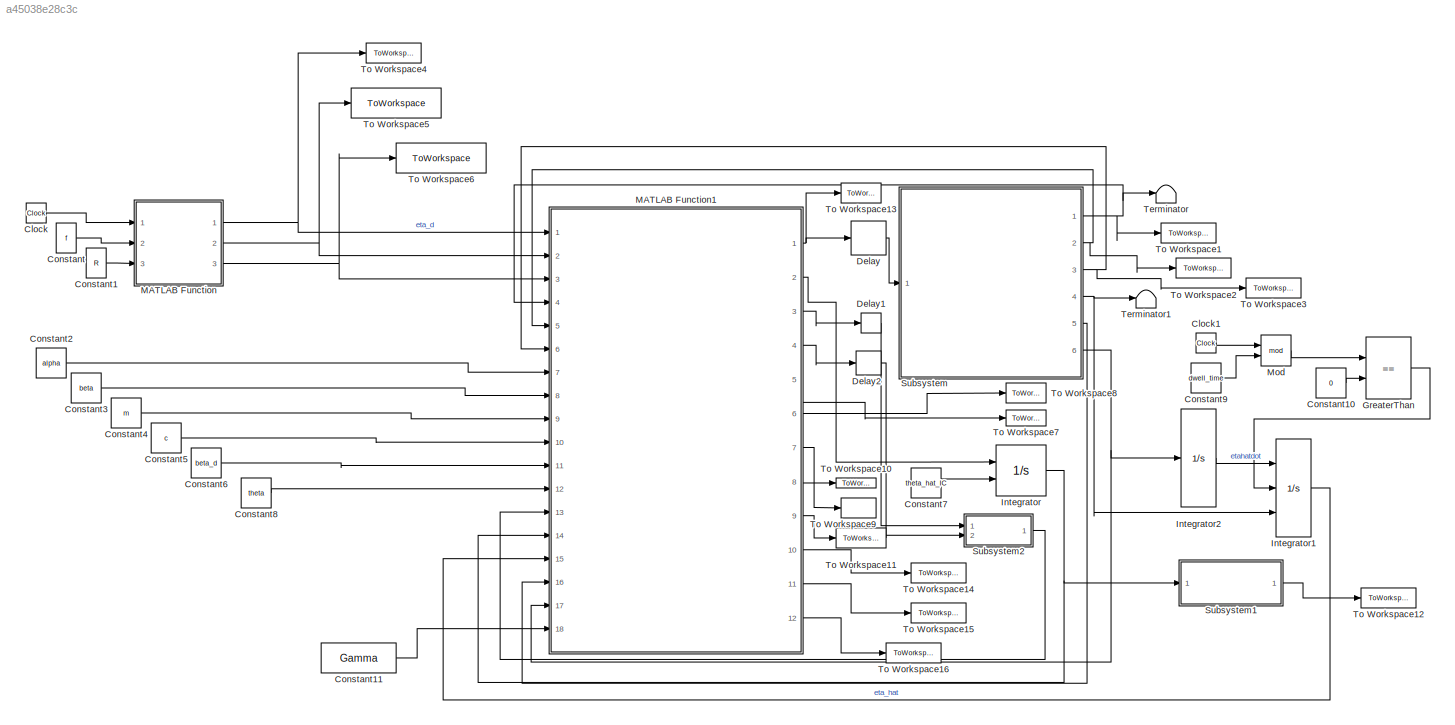
MODEL slx_a45038e28c3c
KIND model
CONFIG AbsTol = auto
CONFIG EnableMultiTasking = off
CONFIG FixedStep = auto
CONFIG MaxStep = auto
CONFIG MinStep = auto
CONFIG RelTol = 1e-3
CONFIG SampleTimeConstraint = Unconstrained
CONFIG SolverName = VariableStepAuto
CONFIG StartTime = 0.0
CONFIG StopTime = tf
BLOCK [Clock] Clock
BLOCK [Clock] Clock1
BLOCK [Constant] Constant
  Value = f
BLOCK [Constant] Constant1
  Value = R
BLOCK [Constant] Constant10
  Value = 0
BLOCK [Constant] Constant11
  Value = Gamma
BLOCK [Constant] Constant2
  Value = alpha
BLOCK [Constant] Constant3
  Value = beta
BLOCK [Constant] Constant4
  Value = m
BLOCK [Constant] Constant5
  Value = c
BLOCK [Constant] Constant6
  Value = beta_d
BLOCK [Constant] Constant7
  Value = theta_hat_IC
BLOCK [Constant] Constant8
  Value = theta
BLOCK [Constant] Constant9
  Value = dwell_time
BLOCK [Delay] Delay
  DelayLength = 1
  InputPortMap = u0
  Ports = [1, 1]
BLOCK [Delay] Delay1
  DelayLength = 1
  InitialCondition = zeros(2,1)
  InputPortMap = u0
  Ports = [1, 1]
BLOCK [Delay] Delay2
  DelayLength = 1
  InitialCondition = zeros(2,1)
  InputPortMap = u0
  Ports = [1, 1]
BLOCK [RelationalOperator] GreaterThan
  InputSameDT = off
  Operator = ==
  OutDataTypeStr = boolean
  Ports = [2, 1]
  RndMeth = Simplest
BLOCK [Integrator] Integrator
  InitialConditionSource = external
  Ports = [2, 1]
BLOCK [Integrator] Integrator1
  ExternalReset = rising
  InitialConditionSource = external
  Ports = [3, 1]
BLOCK [Integrator] Integrator2
  Ports = [1, 1]
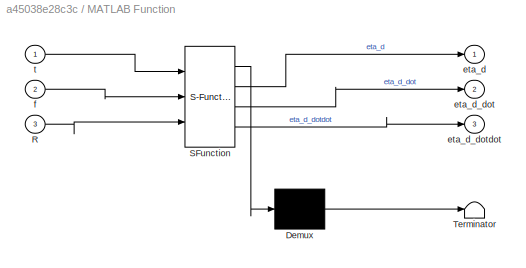
BLOCK [SubSystem] MATLAB Function
  ErrorFcn = Stateflow.Translate.translate
  PermitHierarchicalResolution = ExplicitOnly
  Ports = [3, 3]
  RequestExecContextInheritance = off
  SFBlockType = MATLAB Function
  TreatAsAtomicUnit = on
BLOCK [Demux] MATLAB Function/ Demux 
  Outputs = 1
  Ports = [1, 1]
BLOCK [S-Function] MATLAB Function/ SFunction 
  EnableBusSupport = on
  FunctionName = sf_sfun
  PortCounts = [3 4]
  Ports = [3, 4]
  SFcnIsStateOwnerBlock = off
  SFunctionDeploymentMode = off
  Tag = Stateflow S-Function 2
BLOCK [Terminator] MATLAB Function/ Terminator 
BLOCK [Inport] MATLAB Function/R
  Port = 3
BLOCK [Outport] MATLAB Function/eta_d
BLOCK [Outport] MATLAB Function/eta_d_dot
  Port = 2
BLOCK [Outport] MATLAB Function/eta_d_dotdot
  Port = 3
BLOCK [Inport] MATLAB Function/f
  Port = 2
BLOCK [Inport] MATLAB Function/t
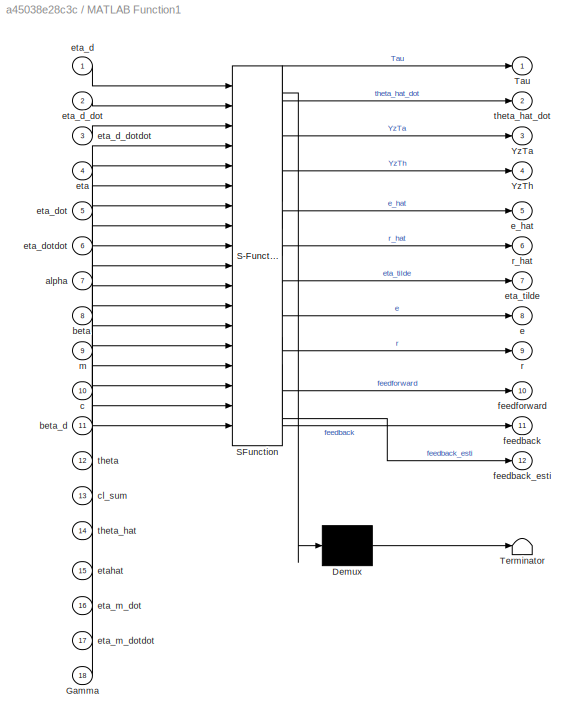
BLOCK [SubSystem] MATLAB Function1
  ErrorFcn = Stateflow.Translate.translate
  PermitHierarchicalResolution = ExplicitOnly
  Ports = [18, 12]
  RequestExecContextInheritance = off
  SFBlockType = MATLAB Function
  TreatAsAtomicUnit = on
BLOCK [Demux] MATLAB Function1/ Demux 
  Outputs = 1
  Ports = [1, 1]
BLOCK [S-Function] MATLAB Function1/ SFunction 
  EnableBusSupport = on
  FunctionName = sf_sfun
  PortCounts = [18 13]
  Ports = [18, 13]
  SFcnIsStateOwnerBlock = off
  SFunctionDeploymentMode = off
  Tag = Stateflow S-Function 1
BLOCK [Terminator] MATLAB Function1/ Terminator 
BLOCK [Inport] MATLAB Function1/Gamma
  Port = 18
BLOCK [Outport] MATLAB Function1/Tau
BLOCK [Outport] MATLAB Function1/YzTa
  Port = 3
BLOCK [Outport] MATLAB Function1/YzTh
  Port = 4
BLOCK [Inport] MATLAB Function1/alpha
  Port = 7
BLOCK [Inport] MATLAB Function1/beta
  Port = 8
BLOCK [Inport] MATLAB Function1/beta_d
  Port = 11
BLOCK [Inport] MATLAB Function1/c
  Port = 10
BLOCK [Inport] MATLAB Function1/cl_sum
  Port = 13
BLOCK [Outport] MATLAB Function1/e
  Port = 8
BLOCK [Outport] MATLAB Function1/e_hat
  Port = 5
BLOCK [Inport] MATLAB Function1/eta
  Port = 4
BLOCK [Inport] MATLAB Function1/eta_d
BLOCK [Inport] MATLAB Function1/eta_d_dot
  Port = 2
BLOCK [Inport] MATLAB Function1/eta_d_dotdot
  Port = 3
BLOCK [Inport] MATLAB Function1/eta_dot
  Port = 5
BLOCK [Inport] MATLAB Function1/eta_dotdot
  Port = 6
BLOCK [Inport] MATLAB Function1/eta_m_dot
  Port = 16
BLOCK [Inport] MATLAB Function1/eta_m_dotdot
  Port = 17
BLOCK [Outport] MATLAB Function1/eta_tilde
  Port = 7
BLOCK [Inport] MATLAB Function1/etahat
  Port = 15
BLOCK [Outport] MATLAB Function1/feedback
  Port = 11
BLOCK [Outport] MATLAB Function1/feedback_esti
  Port = 12
BLOCK [Outport] MATLAB Function1/feedforward
  Port = 10
BLOCK [Inport] MATLAB Function1/m
  Port = 9
BLOCK [Outport] MATLAB Function1/r
  Port = 9
BLOCK [Outport] MATLAB Function1/r_hat
  Port = 6
BLOCK [Inport] MATLAB Function1/theta
  Port = 12
BLOCK [Inport] MATLAB Function1/theta_hat
  Port = 14
BLOCK [Outport] MATLAB Function1/theta_hat_dot
  Port = 2
BLOCK [Math] Mod
  Operator = mod
  Ports = [2, 1]
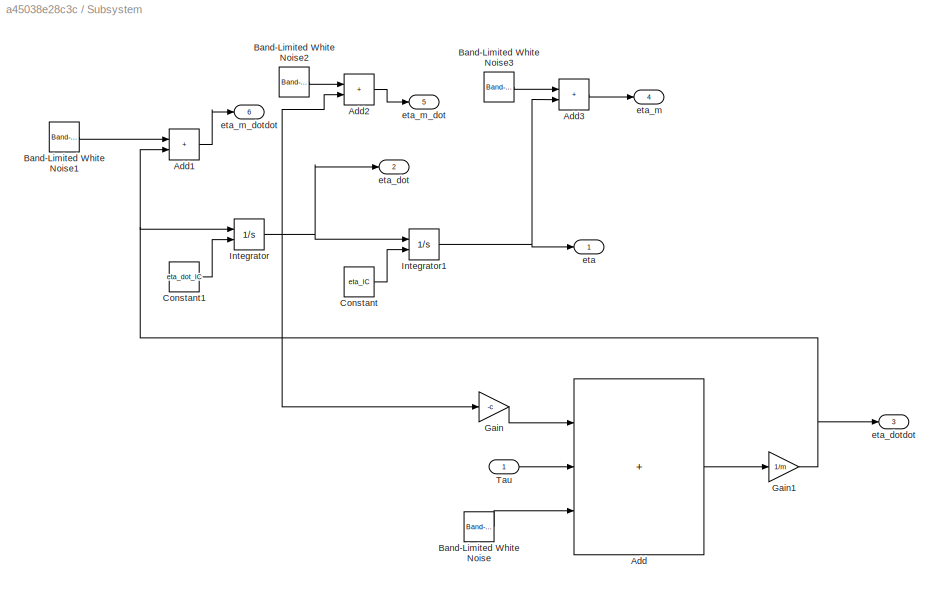
BLOCK [SubSystem] Subsystem
  Ports = [1, 6]
  RequestExecContextInheritance = off
BLOCK [Sum] Subsystem/Add
  IconShape = rectangular
  Inputs = +++
  Ports = [3, 1]
BLOCK [Sum] Subsystem/Add1
  IconShape = rectangular
  Ports = [2, 1]
BLOCK [Sum] Subsystem/Add2
  IconShape = rectangular
  Ports = [2, 1]
BLOCK [Sum] Subsystem/Add3
  IconShape = rectangular
  Ports = [2, 1]
BLOCK [Reference] Subsystem/Band-Limited White Noise  REF=simulink/Sources/Band-Limited
White Noise
  Ports = [0, 1]
  SourceBlock = simulink/Sources/Band-Limited\nWhite Noise
  SourceProductBaseCode = SL
  SourceType = Band-Limited White Noise.
BLOCK [Reference] Subsystem/Band-Limited White Noise1  REF=simulink/Sources/Band-Limited
White Noise
  Commented = on
  Ports = [0, 1]
  SourceBlock = simulink/Sources/Band-Limited\nWhite Noise
  SourceProductBaseCode = SL
  SourceType = Band-Limited White Noise.
BLOCK [Reference] Subsystem/Band-Limited White Noise2  REF=simulink/Sources/Band-Limited
White Noise
  Ports = [0, 1]
  SourceBlock = simulink/Sources/Band-Limited\nWhite Noise
  SourceProductBaseCode = SL
  SourceType = Band-Limited White Noise.
BLOCK [Reference] Subsystem/Band-Limited White Noise3  REF=simulink/Sources/Band-Limited
White Noise
  Ports = [0, 1]
  SourceBlock = simulink/Sources/Band-Limited\nWhite Noise
  SourceProductBaseCode = SL
  SourceType = Band-Limited White Noise.
BLOCK [Constant] Subsystem/Constant
  Value = eta_IC
BLOCK [Constant] Subsystem/Constant1
  Value = eta_dot_IC
BLOCK [Gain] Subsystem/Gain
  Gain = -c
BLOCK [Gain] Subsystem/Gain1
  Gain = 1/m
BLOCK [Integrator] Subsystem/Integrator
  InitialConditionSource = external
  Ports = [2, 1]
BLOCK [Integrator] Subsystem/Integrator1
  InitialConditionSource = external
  Ports = [2, 1]
BLOCK [Inport] Subsystem/Tau
BLOCK [Outport] Subsystem/eta
BLOCK [Outport] Subsystem/eta_dot
  Port = 2
BLOCK [Outport] Subsystem/eta_dotdot
  Port = 3
BLOCK [Outport] Subsystem/eta_m
  Port = 4
BLOCK [Outport] Subsystem/eta_m_dot
  Port = 5
BLOCK [Outport] Subsystem/eta_m_dotdot
  Port = 6
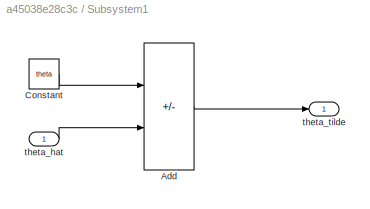
BLOCK [SubSystem] Subsystem1
  Ports = [1, 1]
  RequestExecContextInheritance = off
BLOCK [Sum] Subsystem1/Add
  IconShape = rectangular
  Inputs = +-
  Ports = [2, 1]
BLOCK [Constant] Subsystem1/Constant
  Value = theta
BLOCK [Inport] Subsystem1/theta_hat
BLOCK [Outport] Subsystem1/theta_tilde
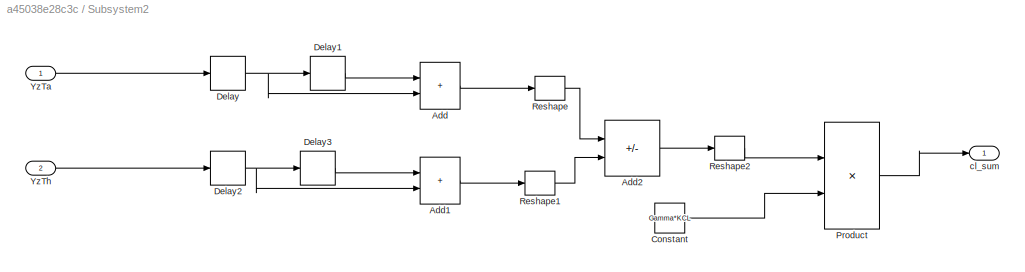
BLOCK [SubSystem] Subsystem2
  Ports = [2, 1]
  RequestExecContextInheritance = off
BLOCK [Sum] Subsystem2/Add
  IconShape = rectangular
  Ports = [2, 1]
BLOCK [Sum] Subsystem2/Add1
  IconShape = rectangular
  Ports = [2, 1]
BLOCK [Sum] Subsystem2/Add2
  IconShape = rectangular
  Inputs = +-
  Ports = [2, 1]
BLOCK [Constant] Subsystem2/Constant
  Value = Gamma*KCL
BLOCK [Delay] Subsystem2/Delay
  DelayLength = 1
  InputPortMap = u0
  Ports = [1, 1]
BLOCK [Delay] Subsystem2/Delay1
  DelayLength = 1
  InputPortMap = u0
  Ports = [1, 1]
BLOCK [Delay] Subsystem2/Delay2
  DelayLength = 1
  InputPortMap = u0
  Ports = [1, 1]
BLOCK [Delay] Subsystem2/Delay3
  DelayLength = 1
  InputPortMap = u0
  Ports = [1, 1]
BLOCK [Product] Subsystem2/Product
  Multiplication = Matrix(*)
  Ports = [2, 1]
BLOCK [Reshape] Subsystem2/Reshape
  OutputDimensionality = Row vector (2-D)
  Ports = [1, 1]
BLOCK [Reshape] Subsystem2/Reshape1
  OutputDimensionality = Row vector (2-D)
  Ports = [1, 1]
BLOCK [Reshape] Subsystem2/Reshape2
  OutputDimensionality = Row vector (2-D)
  Ports = [1, 1]
BLOCK [Inport] Subsystem2/YzTa
BLOCK [Inport] Subsystem2/YzTh
  Port = 2
BLOCK [Outport] Subsystem2/cl_sum
BLOCK [Terminator] Terminator
BLOCK [Terminator] Terminator1
BLOCK [ToWorkspace] To Workspace1
  FixptAsFi = on
  MaxDataPoints = inf
  Ports = [1]
  SampleTime = -1
  SaveFormat = Timeseries
  VariableName = eta
BLOCK [ToWorkspace] To Workspace10
  FixptAsFi = on
  MaxDataPoints = inf
  Ports = [1]
  SampleTime = -1
  SaveFormat = Timeseries
  VariableName = e
BLOCK [ToWorkspace] To Workspace11
  FixptAsFi = on
  MaxDataPoints = inf
  Ports = [1]
  SampleTime = -1
  SaveFormat = Timeseries
  VariableName = r
BLOCK [ToWorkspace] To Workspace12
  FixptAsFi = on
  MaxDataPoints = inf
  Ports = [1]
  SampleTime = -1
  SaveFormat = Timeseries
  VariableName = theta_tilde
BLOCK [ToWorkspace] To Workspace13
  FixptAsFi = on
  MaxDataPoints = inf
  Ports = [1]
  SampleTime = -1
  SaveFormat = Timeseries
  VariableName = tau
BLOCK [ToWorkspace] To Workspace14
  FixptAsFi = on
  MaxDataPoints = inf
  Ports = [1]
  SampleTime = -1
  SaveFormat = Timeseries
  VariableName = ff
BLOCK [ToWorkspace] To Workspace15
  FixptAsFi = on
  MaxDataPoints = inf
  Ports = [1]
  SampleTime = -1
  SaveFormat = Timeseries
  VariableName = fb
BLOCK [ToWorkspace] To Workspace16
  FixptAsFi = on
  MaxDataPoints = inf
  Ports = [1]
  SampleTime = -1
  SaveFormat = Timeseries
  VariableName = fbes
BLOCK [ToWorkspace] To Workspace2
  FixptAsFi = on
  MaxDataPoints = inf
  Ports = [1]
  SampleTime = -1
  SaveFormat = Timeseries
  VariableName = eta_dot
BLOCK [ToWorkspace] To Workspace3
  FixptAsFi = on
  MaxDataPoints = inf
  Ports = [1]
  SampleTime = -1
  SaveFormat = Timeseries
  VariableName = eta_dotdot
BLOCK [ToWorkspace] To Workspace4
  FixptAsFi = on
  MaxDataPoints = inf
  Ports = [1]
  SampleTime = -1
  SaveFormat = Timeseries
  VariableName = eta_d
BLOCK [ToWorkspace] To Workspace5
  FixptAsFi = on
  MaxDataPoints = inf
  Ports = [1]
  SampleTime = -1
  SaveFormat = Timeseries
  VariableName = eta_d_dot
BLOCK [ToWorkspace] To Workspace6
  FixptAsFi = on
  MaxDataPoints = inf
  Ports = [1]
  SampleTime = -1
  SaveFormat = Timeseries
  VariableName = eta_d_dotdot
BLOCK [ToWorkspace] To Workspace7
  FixptAsFi = on
  MaxDataPoints = inf
  Ports = [1]
  SampleTime = -1
  SaveFormat = Timeseries
  VariableName = e_hat
BLOCK [ToWorkspace] To Workspace8
  FixptAsFi = on
  MaxDataPoints = inf
  Ports = [1]
  SampleTime = -1
  SaveFormat = Timeseries
  VariableName = r_hat
BLOCK [ToWorkspace] To Workspace9
  FixptAsFi = on
  MaxDataPoints = inf
  Ports = [1]
  SampleTime = -1
  SaveFormat = Timeseries
  VariableName = eta_tilde
LINE Clock1:1 -> Mod:1
LINE Clock:1 -> MATLAB Function:1
LINE Constant10:1 -> GreaterThan:2
LINE Constant11:1 -> MATLAB Function1:18
LINE Constant1:1 -> MATLAB Function:3
LINE Constant2:1 -> MATLAB Function1:7
LINE Constant3:1 -> MATLAB Function1:8
LINE Constant4:1 -> MATLAB Function1:9
LINE Constant5:1 -> MATLAB Function1:10
LINE Constant6:1 -> MATLAB Function1:11
LINE Constant7:1 -> Integrator:2
LINE Constant8:1 -> MATLAB Function1:12
LINE Constant9:1 -> Mod:2
LINE Constant:1 -> MATLAB Function:2
LINE Delay1:1 -> Subsystem2:1
LINE Delay2:1 -> Subsystem2:2
LINE Delay:1 -> Subsystem:1
LINE GreaterThan:1 -> Integrator1:2
LINE Integrator1:1 -> MATLAB Function1:15
LINE Integrator2:1 -> Integrator1:1
NET Integrator:1 -> MATLAB Function1:14, Subsystem1:1
NET MATLAB Function1:1 -> Delay:1, To Workspace13:1
LINE MATLAB Function1:10 -> To Workspace14:1
LINE MATLAB Function1:11 -> To Workspace15:1
LINE MATLAB Function1:12 -> To Workspace16:1
LINE MATLAB Function1:2 -> Integrator:1
LINE MATLAB Function1:3 -> Delay1:1
LINE MATLAB Function1:4 -> Delay2:1
LINE MATLAB Function1:5 -> To Workspace7:1
LINE MATLAB Function1:6 -> To Workspace8:1
LINE MATLAB Function1:7 -> To Workspace9:1
LINE MATLAB Function1:8 -> To Workspace10:1
LINE MATLAB Function1:9 -> To Workspace11:1
NET MATLAB Function:1 -> MATLAB Function1:1, To Workspace4:1
NET MATLAB Function:2 -> MATLAB Function1:2, To Workspace5:1
NET MATLAB Function:3 -> MATLAB Function1:3, To Workspace6:1
LINE Mod:1 -> GreaterThan:1
LINE Subsystem/Add1:1 -> Subsystem/eta_m_dotdot:1
LINE Subsystem/Add2:1 -> Subsystem/eta_m_dot:1
LINE Subsystem/Add3:1 -> Subsystem/eta_m:1
LINE Subsystem/Add:1 -> Subsystem/Gain1:1
LINE Subsystem/Band-Limited White Noise1:1 -> Subsystem/Add1:1
LINE Subsystem/Band-Limited White Noise2:1 -> Subsystem/Add2:1
LINE Subsystem/Band-Limited White Noise3:1 -> Subsystem/Add3:1
LINE Subsystem/Band-Limited White Noise:1 -> Subsystem/Add:3
LINE Subsystem/Constant1:1 -> Subsystem/Integrator:2
LINE Subsystem/Constant:1 -> Subsystem/Integrator1:2
NET Subsystem/Gain1:1 -> Subsystem/Add1:2, Subsystem/Integrator:1, Subsystem/eta_dotdot:1
LINE Subsystem/Gain:1 -> Subsystem/Add:1
NET Subsystem/Integrator1:1 -> Subsystem/Add3:2, Subsystem/eta:1
NET Subsystem/Integrator:1 -> Subsystem/Add2:2, Subsystem/Gain:1, Subsystem/Integrator1:1, Subsystem/eta_dot:1
LINE Subsystem/Tau:1 -> Subsystem/Add:2
LINE Subsystem1/Add:1 -> Subsystem1/theta_tilde:1
LINE Subsystem1/Constant:1 -> Subsystem1/Add:1
LINE Subsystem1/theta_hat:1 -> Subsystem1/Add:2
LINE Subsystem1:1 -> To Workspace12:1
LINE Subsystem2/Add1:1 -> Subsystem2/Reshape1:1
LINE Subsystem2/Add2:1 -> Subsystem2/Reshape2:1
LINE Subsystem2/Add:1 -> Subsystem2/Reshape:1
LINE Subsystem2/Constant:1 -> Subsystem2/Product:2
LINE Subsystem2/Delay1:1 -> Subsystem2/Add:1
NET Subsystem2/Delay2:1 -> Subsystem2/Add1:2, Subsystem2/Delay3:1
LINE Subsystem2/Delay3:1 -> Subsystem2/Add1:1
NET Subsystem2/Delay:1 -> Subsystem2/Add:2, Subsystem2/Delay1:1
LINE Subsystem2/Product:1 -> Subsystem2/cl_sum:1
LINE Subsystem2/Reshape1:1 -> Subsystem2/Add2:2
LINE Subsystem2/Reshape2:1 -> Subsystem2/Product:1
LINE Subsystem2/Reshape:1 -> Subsystem2/Add2:1
LINE Subsystem2/YzTa:1 -> Subsystem2/Delay:1
LINE Subsystem2/YzTh:1 -> Subsystem2/Delay2:1
LINE Subsystem2:1 -> MATLAB Function1:13
NET Subsystem:1 -> MATLAB Function1:4, Terminator:1, To Workspace1:1
NET Subsystem:2 -> MATLAB Function1:5, To Workspace2:1
NET Subsystem:3 -> MATLAB Function1:6, To Workspace3:1
NET Subsystem:4 -> Integrator1:3, Terminator1:1
LINE Subsystem:5 -> MATLAB Function1:16
NET Subsystem:6 -> Integrator2:1, MATLAB Function1:17
note: NET lines group one-source signal fan-out (src -> all destinations, sorted); 1:1 wires keep LINE
CHART MATLAB Function1 states=1 transitions=1
  STATE_LABEL 'eML_blk_kernel()'
  STATE_LABEL "SCRIPT:\nfunction [Tau, theta_hat_dot, YzTa, YzTh, e_hat, r_hat, eta_tilde, e, r, feedforward, feedback, feedback_esti] = fcn(eta_d, eta_d_dot, eta_d_dotdot, eta, eta_dot, eta_dotdot, alpha, beta, m, c, beta_d, theta, cl_sum, theta_hat, etahat, eta_m_dot, eta_m_dotdot, Gamma)\n\n\n\n% e_hat_dot = [1e-2, 2e-1]';\n% r_hat = [1e-1, 2e-3]';\n% Y = [[1e-1, 2e-3]', [1e-2, 2e-1]'];\n% Tau = [1e-1, 2e-1]';\n%etaha...<+597ch>"
CHART MATLAB Function states=1 transitions=1
  STATE_LABEL 'eML_blk_kernel()'
  STATE_LABEL 'SCRIPT:\nfunction [eta_d, eta_d_dot, eta_d_dotdot]= fcn(t,f,R)\neta_d = R*[cos(2*pi*f*t); sin(2*pi*f*t)];\neta_d_dot = 2*pi*f*R*[-sin(2*pi*f*t); cos(2*pi*f*t)];\neta_d_dotdot = (2*pi*f)*(2*pi*f)*R*[-cos(2*pi*f*t); -sin(2*pi*f*t)];\n'
CHART  states=0 transitions=0
CHART  states=0 transitions=0
